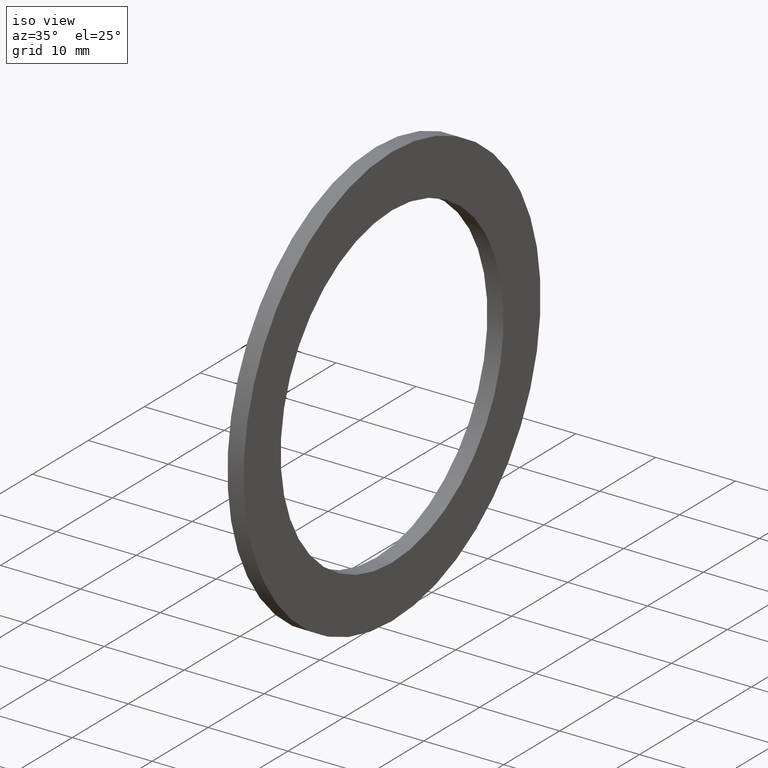
[diagram: clean part render]
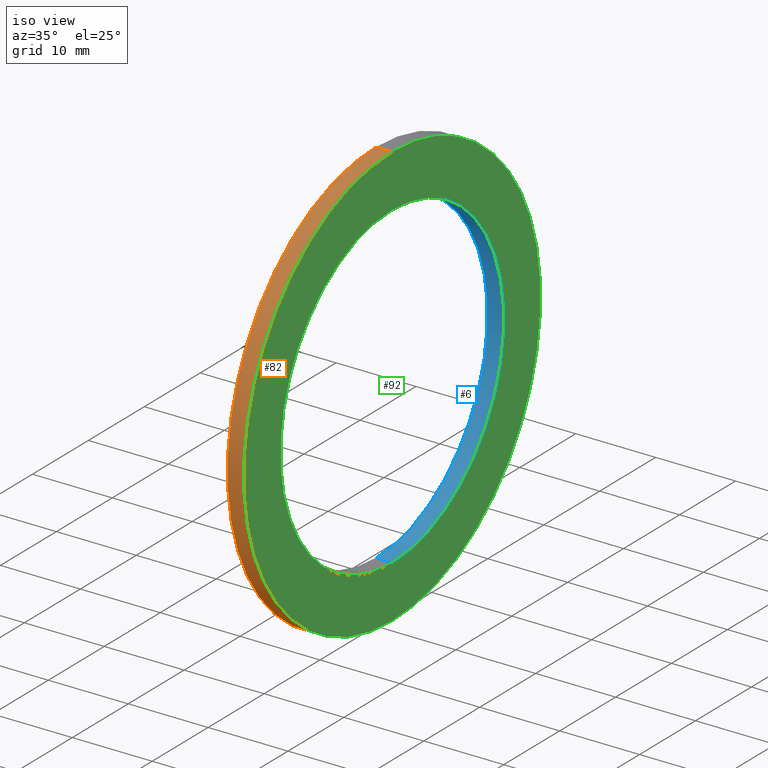
[diagram: same view with three faces highlighted in distinct colors, each labeled with its STEP entity id]
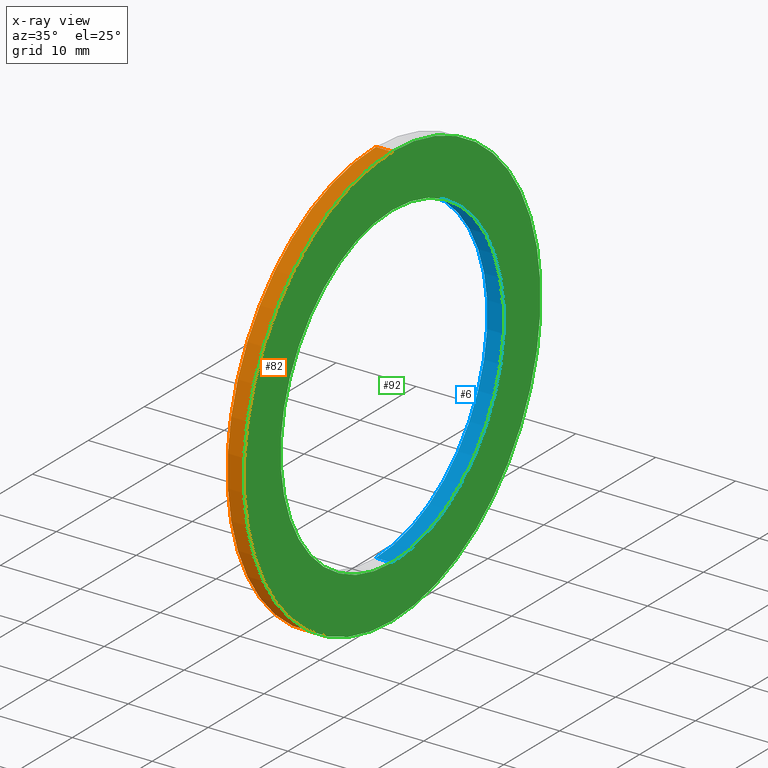
[diagram: x-ray of the same camera — body ghosted, the three highlighted faces saturated]
A machine part, iso view with three faces highlighted in distinct colors.
The next image is the same camera in x-ray (body ghosted, the three faces saturated) — at least one of them is partly hidden behind the body in this view.
Their STEP definitions:

[orange] entity #82 — the highlighted cylindrical surface (partial cylindrical patch) has radius 26.543 mm, axis along (-1, 0, 0).
#15 = VERTEX_POINT ( 'NONE', #47 ) ;
#27 = VERTEX_POINT ( 'NONE', #68 ) ;
#47 = CARTESIAN_POINT ( 'NONE',  ( 0.07999999999999996000, 1.279755905108984100E-016, -1.044999999999999900 ) ) ;
#68 = CARTESIAN_POINT ( 'NONE',  ( 0.07999999999999996000, 0.0000000000000000000, 1.044999999999999900 ) ) ;
#82 = ADVANCED_FACE ( 'NONE', ( #124 ), #119, .T. ) ;
#87 = CARTESIAN_POINT ( 'NONE',  ( 0.0000000000000000000, 1.279755905108984100E-016, -1.044999999999999900 ) ) ;
#94 = VERTEX_POINT ( 'NONE', #87 ) ;
#97 = VERTEX_POINT ( 'NONE', #200 ) ;
#98 = ORIENTED_EDGE ( 'NONE', *, *, #102, .T. ) ;
#99 = EDGE_LOOP ( 'NONE', ( #100, #104, #98, #107 ) ) ;
#100 = ORIENTED_EDGE ( 'NONE', *, *, #126, .F. ) ;
#102 = EDGE_CURVE ( 'NONE', #27, #97, #245, .T. ) ;
#104 = ORIENTED_EDGE ( 'NONE', *, *, #109, .T. ) ;
#107 = ORIENTED_EDGE ( 'NONE', *, *, #108, .F. ) ;
#108 = EDGE_CURVE ( 'NONE', #94, #97, #241, .T. ) ;
#109 = EDGE_CURVE ( 'NONE', #15, #27, #251, .T. ) ;
#114 = DIRECTION ( 'NONE',  ( 0.0000000000000000000, 0.0000000000000000000, 1.000000000000000000 ) ) ;
#115 = DIRECTION ( 'NONE',  ( -1.000000000000000000, 0.0000000000000000000, 0.0000000000000000000 ) ) ;
#116 = CARTESIAN_POINT ( 'NONE',  ( -1.721125226614714300, 0.0000000000000000000, 0.0000000000000000000 ) ) ;
#117 = AXIS2_PLACEMENT_3D ( 'NONE', #116, #115, #114 ) ;
#119 = CYLINDRICAL_SURFACE ( 'NONE', #117, 1.044999999999999900 ) ;
#124 = FACE_OUTER_BOUND ( 'NONE', #99, .T. ) ;
#126 = EDGE_CURVE ( 'NONE', #15, #94, #197, .T. ) ;
#197 = LINE ( 'NONE', #239, #238 ) ;
#198 = DIRECTION ( 'NONE',  ( 0.0000000000000000000, 0.0000000000000000000, 1.000000000000000000 ) ) ;
#199 = DIRECTION ( 'NONE',  ( -1.000000000000000000, 0.0000000000000000000, 0.0000000000000000000 ) ) ;
#200 = CARTESIAN_POINT ( 'NONE',  ( 0.0000000000000000000, 0.0000000000000000000, 1.044999999999999900 ) ) ;
#230 = DIRECTION ( 'NONE',  ( -1.000000000000000000, 0.0000000000000000000, 0.0000000000000000000 ) ) ;
#231 = CARTESIAN_POINT ( 'NONE',  ( 0.0000000000000000000, 0.0000000000000000000, 0.0000000000000000000 ) ) ;
#232 = AXIS2_PLACEMENT_3D ( 'NONE', #231, #230, #252 ) ;
#233 = CARTESIAN_POINT ( 'NONE',  ( 0.07999999999999996000, 0.0000000000000000000, 0.0000000000000000000 ) ) ;
#237 = DIRECTION ( 'NONE',  ( -1.000000000000000000, 0.0000000000000000000, 0.0000000000000000000 ) ) ;
#238 = VECTOR ( 'NONE', #237, 39.37007874015748100 ) ;
#239 = CARTESIAN_POINT ( 'NONE',  ( -1.721125226614714300, 1.279755905108984100E-016, -1.044999999999999900 ) ) ;
#241 = CIRCLE ( 'NONE', #232, 1.044999999999999900 ) ;
#242 = DIRECTION ( 'NONE',  ( -1.000000000000000000, 0.0000000000000000000, 0.0000000000000000000 ) ) ;
#243 = VECTOR ( 'NONE', #242, 39.37007874015748100 ) ;
#244 = CARTESIAN_POINT ( 'NONE',  ( -1.721125226614714300, 0.0000000000000000000, 1.044999999999999900 ) ) ;
#245 = LINE ( 'NONE', #244, #243 ) ;
#250 = AXIS2_PLACEMENT_3D ( 'NONE', #233, #199, #198 ) ;
#251 = CIRCLE ( 'NONE', #250, 1.044999999999999900 ) ;
#252 = DIRECTION ( 'NONE',  ( 0.0000000000000000000, 0.0000000000000000000, 1.000000000000000000 ) ) ;

[blue] entity #6 — the highlighted cylindrical surface (partial cylindrical patch) has radius 19.939 mm, axis along (-1, 0, 0).
#1 = EDGE_CURVE ( 'NONE', #20, #17, #63, .T. ) ;
#6 = ADVANCED_FACE ( 'NONE', ( #64 ), #56, .F. ) ;
#7 = EDGE_LOOP ( 'NONE', ( #8, #9, #10, #11 ) ) ;
#8 = ORIENTED_EDGE ( 'NONE', *, *, #16, .F. ) ;
#9 = ORIENTED_EDGE ( 'NONE', *, *, #1, .F. ) ;
#10 = ORIENTED_EDGE ( 'NONE', *, *, #22, .T. ) ;
#11 = ORIENTED_EDGE ( 'NONE', *, *, #129, .T. ) ;
#12 = VERTEX_POINT ( 'NONE', #57 ) ;
#16 = EDGE_CURVE ( 'NONE', #17, #30, #46, .T. ) ;
#17 = VERTEX_POINT ( 'NONE', #42 ) ;
#20 = VERTEX_POINT ( 'NONE', #41 ) ;
#22 = EDGE_CURVE ( 'NONE', #20, #12, #40, .T. ) ;
#30 = VERTEX_POINT ( 'NONE', #67 ) ;
#37 = DIRECTION ( 'NONE',  ( -1.000000000000000000, 0.0000000000000000000, 0.0000000000000000000 ) ) ;
#38 = VECTOR ( 'NONE', #37, 39.37007874015748100 ) ;
#39 = CARTESIAN_POINT ( 'NONE',  ( -1.721125226614714300, 0.0000000000000000000, 0.7850000000000001400 ) ) ;
#40 = LINE ( 'NONE', #39, #38 ) ;
#41 = CARTESIAN_POINT ( 'NONE',  ( 0.07999999999999996000, 0.0000000000000000000, 0.7850000000000001400 ) ) ;
#42 = CARTESIAN_POINT ( 'NONE',  ( 0.07999999999999996000, 9.613477373306724800E-017, -0.7850000000000001400 ) ) ;
#43 = DIRECTION ( 'NONE',  ( -1.000000000000000000, 0.0000000000000000000, 0.0000000000000000000 ) ) ;
#44 = VECTOR ( 'NONE', #43, 39.37007874015748100 ) ;
#45 = CARTESIAN_POINT ( 'NONE',  ( -1.721125226614714300, 9.613477373306724800E-017, -0.7850000000000001400 ) ) ;
#46 = LINE ( 'NONE', #45, #44 ) ;
#53 = DIRECTION ( 'NONE',  ( 0.0000000000000000000, 0.0000000000000000000, 1.000000000000000000 ) ) ;
#54 = DIRECTION ( 'NONE',  ( -1.000000000000000000, 0.0000000000000000000, 0.0000000000000000000 ) ) ;
#55 = AXIS2_PLACEMENT_3D ( 'NONE', #58, #54, #53 ) ;
#56 = CYLINDRICAL_SURFACE ( 'NONE', #55, 0.7850000000000001400 ) ;
#57 = CARTESIAN_POINT ( 'NONE',  ( 0.0000000000000000000, 0.0000000000000000000, 0.7850000000000001400 ) ) ;
#58 = CARTESIAN_POINT ( 'NONE',  ( -1.721125226614714300, 0.0000000000000000000, 0.0000000000000000000 ) ) ;
#59 = DIRECTION ( 'NONE',  ( 0.0000000000000000000, 0.0000000000000000000, 1.000000000000000000 ) ) ;
#60 = DIRECTION ( 'NONE',  ( -1.000000000000000000, 0.0000000000000000000, 0.0000000000000000000 ) ) ;
#61 = CARTESIAN_POINT ( 'NONE',  ( 0.07999999999999996000, 0.0000000000000000000, 0.0000000000000000000 ) ) ;
#62 = AXIS2_PLACEMENT_3D ( 'NONE', #61, #60, #59 ) ;
#63 = CIRCLE ( 'NONE', #62, 0.7850000000000001400 ) ;
#64 = FACE_OUTER_BOUND ( 'NONE', #7, .T. ) ;
#67 = CARTESIAN_POINT ( 'NONE',  ( 0.0000000000000000000, 9.613477373306724800E-017, -0.7850000000000001400 ) ) ;
#129 = EDGE_CURVE ( 'NONE', #12, #30, #207, .T. ) ;
#137 = DIRECTION ( 'NONE',  ( 0.0000000000000000000, 0.0000000000000000000, 1.000000000000000000 ) ) ;
#138 = DIRECTION ( 'NONE',  ( -1.000000000000000000, 0.0000000000000000000, 0.0000000000000000000 ) ) ;
#205 = CARTESIAN_POINT ( 'NONE',  ( 0.0000000000000000000, 0.0000000000000000000, 0.0000000000000000000 ) ) ;
#206 = AXIS2_PLACEMENT_3D ( 'NONE', #205, #138, #137 ) ;
#207 = CIRCLE ( 'NONE', #206, 0.7850000000000001400 ) ;

[green] entity #92 — the highlighted planar face has unit normal (1, 0, 0).
#1 = EDGE_CURVE ( 'NONE', #20, #17, #63, .T. ) ;
#2 = ORIENTED_EDGE ( 'NONE', *, *, #14, .T. ) ;
#3 = EDGE_LOOP ( 'NONE', ( #4, #5 ) ) ;
#4 = ORIENTED_EDGE ( 'NONE', *, *, #25, .F. ) ;
#5 = ORIENTED_EDGE ( 'NONE', *, *, #109, .F. ) ;
#14 = EDGE_CURVE ( 'NONE', #17, #20, #52, .T. ) ;
#15 = VERTEX_POINT ( 'NONE', #47 ) ;
#17 = VERTEX_POINT ( 'NONE', #42 ) ;
#20 = VERTEX_POINT ( 'NONE', #41 ) ;
#25 = EDGE_CURVE ( 'NONE', #27, #15, #77, .T. ) ;
#27 = VERTEX_POINT ( 'NONE', #68 ) ;
#41 = CARTESIAN_POINT ( 'NONE',  ( 0.07999999999999996000, 0.0000000000000000000, 0.7850000000000001400 ) ) ;
#42 = CARTESIAN_POINT ( 'NONE',  ( 0.07999999999999996000, 9.613477373306724800E-017, -0.7850000000000001400 ) ) ;
#47 = CARTESIAN_POINT ( 'NONE',  ( 0.07999999999999996000, 1.279755905108984100E-016, -1.044999999999999900 ) ) ;
#48 = DIRECTION ( 'NONE',  ( 0.0000000000000000000, 0.0000000000000000000, 1.000000000000000000 ) ) ;
#49 = DIRECTION ( 'NONE',  ( -1.000000000000000000, 0.0000000000000000000, 0.0000000000000000000 ) ) ;
#50 = CARTESIAN_POINT ( 'NONE',  ( 0.07999999999999996000, 0.0000000000000000000, 0.0000000000000000000 ) ) ;
#51 = AXIS2_PLACEMENT_3D ( 'NONE', #50, #49, #48 ) ;
#52 = CIRCLE ( 'NONE', #51, 0.7850000000000001400 ) ;
#59 = DIRECTION ( 'NONE',  ( 0.0000000000000000000, 0.0000000000000000000, 1.000000000000000000 ) ) ;
#60 = DIRECTION ( 'NONE',  ( -1.000000000000000000, 0.0000000000000000000, 0.0000000000000000000 ) ) ;
#61 = CARTESIAN_POINT ( 'NONE',  ( 0.07999999999999996000, 0.0000000000000000000, 0.0000000000000000000 ) ) ;
#62 = AXIS2_PLACEMENT_3D ( 'NONE', #61, #60, #59 ) ;
#63 = CIRCLE ( 'NONE', #62, 0.7850000000000001400 ) ;
#68 = CARTESIAN_POINT ( 'NONE',  ( 0.07999999999999996000, 0.0000000000000000000, 1.044999999999999900 ) ) ;
#73 = DIRECTION ( 'NONE',  ( 0.0000000000000000000, 0.0000000000000000000, 1.000000000000000000 ) ) ;
#74 = DIRECTION ( 'NONE',  ( -1.000000000000000000, 0.0000000000000000000, 0.0000000000000000000 ) ) ;
#75 = CARTESIAN_POINT ( 'NONE',  ( 0.07999999999999996000, 0.0000000000000000000, 0.0000000000000000000 ) ) ;
#76 = AXIS2_PLACEMENT_3D ( 'NONE', #75, #74, #73 ) ;
#77 = CIRCLE ( 'NONE', #76, 1.044999999999999900 ) ;
#88 = DIRECTION ( 'NONE',  ( 0.0000000000000000000, 0.0000000000000000000, -1.000000000000000000 ) ) ;
#89 = DIRECTION ( 'NONE',  ( 1.000000000000000000, 0.0000000000000000000, 0.0000000000000000000 ) ) ;
#90 = CARTESIAN_POINT ( 'NONE',  ( 0.08000000000000001600, -0.7850000000000001400, 0.0000000000000000000 ) ) ;
#91 = AXIS2_PLACEMENT_3D ( 'NONE', #90, #89, #88 ) ;
#92 = ADVANCED_FACE ( 'NONE', ( #113, #112 ), #118, .T. ) ;
#93 = EDGE_LOOP ( 'NONE', ( #103, #2 ) ) ;
#103 = ORIENTED_EDGE ( 'NONE', *, *, #1, .T. ) ;
#109 = EDGE_CURVE ( 'NONE', #15, #27, #251, .T. ) ;
#112 = FACE_OUTER_BOUND ( 'NONE', #3, .T. ) ;
#113 = FACE_BOUND ( 'NONE', #93, .T. ) ;
#118 = PLANE ( 'NONE',  #91 ) ;
#198 = DIRECTION ( 'NONE',  ( 0.0000000000000000000, 0.0000000000000000000, 1.000000000000000000 ) ) ;
#199 = DIRECTION ( 'NONE',  ( -1.000000000000000000, 0.0000000000000000000, 0.0000000000000000000 ) ) ;
#233 = CARTESIAN_POINT ( 'NONE',  ( 0.07999999999999996000, 0.0000000000000000000, 0.0000000000000000000 ) ) ;
#250 = AXIS2_PLACEMENT_3D ( 'NONE', #233, #199, #198 ) ;
#251 = CIRCLE ( 'NONE', #250, 1.044999999999999900 ) ;